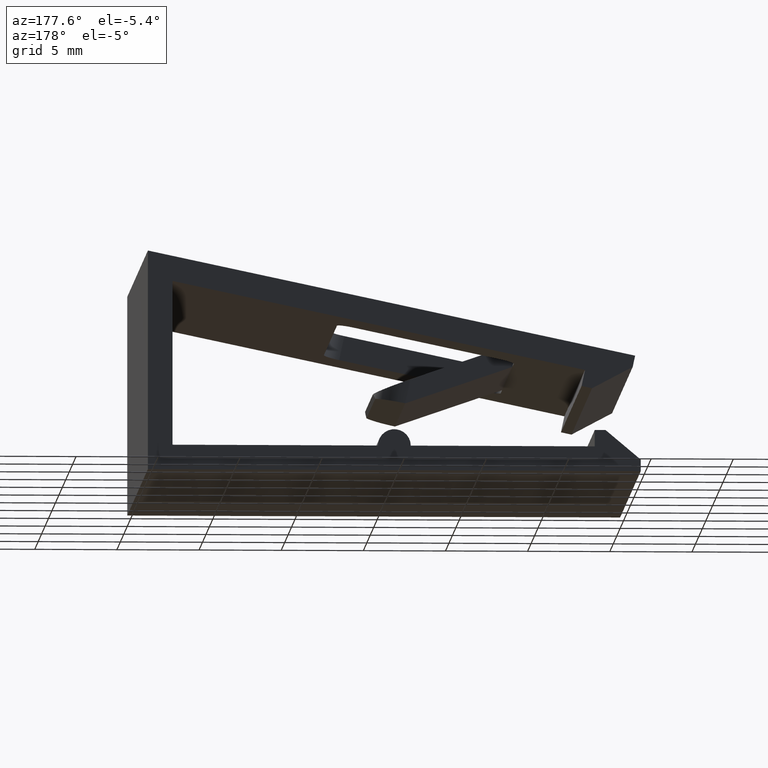
[diagram: clean part render]
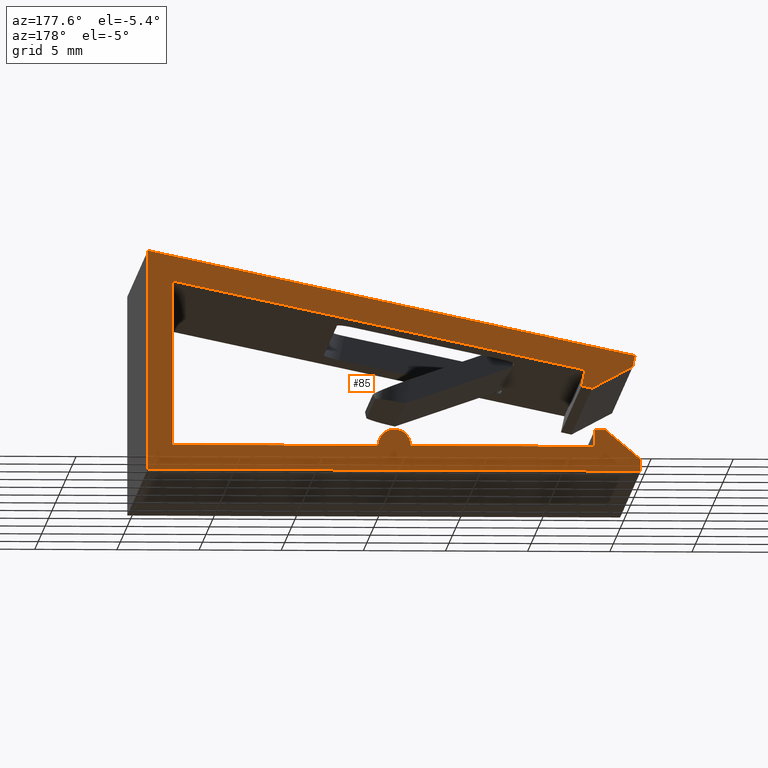
[diagram: same view with one face highlighted and labeled with its STEP entity id]
A machine part, auxiliary view. The second image highlights one B-rep face of the part: STEP entity #85.
In plain terms, the highlighted planar face has unit normal (-0, -1, -0).
Its self-contained STEP definition (entity closure, byte-faithful):
#85 = ADVANCED_FACE( '', ( #133 ), #134, .F. );
#133 = FACE_OUTER_BOUND( '', #205, .T. );
#134 = PLANE( '', #206 );
#205 = EDGE_LOOP( '', ( #345, #346, #347, #348, #349, #350, #351, #352, #353, #354, #355, #356, #357, #358, #359, #360 ) );
#206 = AXIS2_PLACEMENT_3D( '', #361, #362, #363 );
#345 = ORIENTED_EDGE( '', *, *, #552, .F. );
#346 = ORIENTED_EDGE( '', *, *, #594, .F. );
#347 = ORIENTED_EDGE( '', *, *, #595, .F. );
#348 = ORIENTED_EDGE( '', *, *, #596, .F. );
#349 = ORIENTED_EDGE( '', *, *, #597, .F. );
#350 = ORIENTED_EDGE( '', *, *, #598, .F. );
#351 = ORIENTED_EDGE( '', *, *, #599, .F. );
#352 = ORIENTED_EDGE( '', *, *, #600, .F. );
#353 = ORIENTED_EDGE( '', *, *, #601, .F. );
#354 = ORIENTED_EDGE( '', *, *, #564, .F. );
#355 = ORIENTED_EDGE( '', *, *, #602, .F. );
#356 = ORIENTED_EDGE( '', *, *, #603, .F. );
#357 = ORIENTED_EDGE( '', *, *, #604, .F. );
#358 = ORIENTED_EDGE( '', *, *, #605, .F. );
#359 = ORIENTED_EDGE( '', *, *, #582, .F. );
#360 = ORIENTED_EDGE( '', *, *, #606, .F. );
#361 = CARTESIAN_POINT( '', ( 1.56125112837913E-014, 15.0000000000000, 1.50000000000001 ) );
#362 = DIRECTION( '', ( -6.12303176911189E-017, -1.00000000000000, -1.83690953073357E-016 ) );
#363 = DIRECTION( '', ( 1.00000000000000, -6.12303176911189E-017, 0.000000000000000 ) );
#552 = EDGE_CURVE( '', #650, #652, #653, .T. );
#564 = EDGE_CURVE( '', #671, #673, #674, .T. );
#582 = EDGE_CURVE( '', #704, #706, #707, .T. );
#594 = EDGE_CURVE( '', #725, #650, #727, .T. );
#595 = EDGE_CURVE( '', #728, #725, #729, .T. );
#596 = EDGE_CURVE( '', #730, #728, #731, .T. );
#597 = EDGE_CURVE( '', #732, #730, #733, .T. );
#598 = EDGE_CURVE( '', #734, #732, #735, .T. );
#599 = EDGE_CURVE( '', #736, #734, #737, .T. );
#600 = EDGE_CURVE( '', #738, #736, #739, .T. );
#601 = EDGE_CURVE( '', #673, #738, #740, .T. );
#602 = EDGE_CURVE( '', #741, #671, #742, .T. );
#603 = EDGE_CURVE( '', #743, #741, #744, .T. );
#604 = EDGE_CURVE( '', #745, #743, #746, .T. );
#605 = EDGE_CURVE( '', #706, #745, #747, .T. );
#606 = EDGE_CURVE( '', #652, #704, #748, .T. );
#650 = VERTEX_POINT( '', #808 );
#652 = VERTEX_POINT( '', #811 );
#653 = LINE( '', #812, #813 );
#671 = VERTEX_POINT( '', #837 );
#673 = VERTEX_POINT( '', #840 );
#674 = LINE( '', #841, #842 );
#704 = VERTEX_POINT( '', #883 );
#706 = VERTEX_POINT( '', #886 );
#707 = LINE( '', #887, #888 );
#725 = VERTEX_POINT( '', #913 );
#727 = LINE( '', #916, #917 );
#728 = VERTEX_POINT( '', #918 );
#729 = LINE( '', #919, #920 );
#730 = VERTEX_POINT( '', #921 );
#731 = LINE( '', #922, #923 );
#732 = VERTEX_POINT( '', #924 );
#733 = LINE( '', #925, #926 );
#734 = VERTEX_POINT( '', #927 );
#735 = LINE( '', #928, #929 );
#736 = VERTEX_POINT( '', #930 );
#737 = CIRCLE( '', #931, 1.00000000000000 );
#738 = VERTEX_POINT( '', #932 );
#739 = LINE( '', #933, #934 );
#740 = LINE( '', #935, #936 );
#741 = VERTEX_POINT( '', #937 );
#742 = LINE( '', #938, #939 );
#743 = VERTEX_POINT( '', #940 );
#744 = LINE( '', #941, #942 );
#745 = VERTEX_POINT( '', #943 );
#746 = LINE( '', #944, #945 );
#747 = LINE( '', #946, #947 );
#748 = LINE( '', #948, #949 );
#808 = CARTESIAN_POINT( '', ( -15.0000000000000, 15.0000000000000, 7.35387228542605E-015 ) );
#811 = CARTESIAN_POINT( '', ( 15.0000000000000, 15.0000000000000, 5.51072859220070E-015 ) );
#812 = CARTESIAN_POINT( '', ( -15.0000000000000, 15.0000000000000, 7.34763812293426E-015 ) );
#813 = VECTOR( '', #1028, 1000.00000000000 );
#837 = CARTESIAN_POINT( '', ( -11.6056147399596, 15.0000000000000, 6.16480200975693 ) );
#840 = CARTESIAN_POINT( '', ( 13.5000000000000, 15.0000000000000, 11.5011651574950 ) );
#841 = CARTESIAN_POINT( '', ( -11.6056147399596, 15.0000000000000, 6.16480200975693 ) );
#842 = VECTOR( '', #1048, 1000.00000000000 );
#883 = CARTESIAN_POINT( '', ( 15.0000000000000, 15.0000000000000, 13.3535108922976 ) );
#886 = CARTESIAN_POINT( '', ( -14.6562955582409, 15.0000000000000, 7.04987067656792 ) );
#887 = CARTESIAN_POINT( '', ( 15.0000000000000, 15.0000000000000, 13.3535108922976 ) );
#888 = VECTOR( '', #1076, 1000.00000000000 );
#913 = CARTESIAN_POINT( '', ( -15.0000000000000, 15.0000000000000, 0.700000000000012 ) );
#916 = CARTESIAN_POINT( '', ( -15.0000000000000, 15.0000000000000, 0.700000000000012 ) );
#917 = VECTOR( '', #1094, 1000.00000000000 );
#918 = CARTESIAN_POINT( '', ( -12.8548435333304, 15.0000000000000, 2.50000000000001 ) );
#919 = CARTESIAN_POINT( '', ( -12.8548435333304, 15.0000000000000, 2.50000000000001 ) );
#920 = VECTOR( '', #1095, 1000.00000000000 );
#921 = CARTESIAN_POINT( '', ( -12.2000000000000, 15.0000000000000, 2.50000000000001 ) );
#922 = CARTESIAN_POINT( '', ( -12.2000000000000, 15.0000000000000, 2.50000000000001 ) );
#923 = VECTOR( '', #1096, 1000.00000000000 );
#924 = CARTESIAN_POINT( '', ( -12.2000000000000, 15.0000000000000, 1.50000000000001 ) );
#925 = CARTESIAN_POINT( '', ( -12.2000000000000, 15.0000000000000, 1.50000000000001 ) );
#926 = VECTOR( '', #1097, 1000.00000000000 );
#927 = CARTESIAN_POINT( '', ( -0.999999999999984, 15.0000000000000, 1.50000000000001 ) );
#928 = CARTESIAN_POINT( '', ( -0.999999999999984, 15.0000000000000, 1.50000000000001 ) );
#929 = VECTOR( '', #1098, 1000.00000000000 );
#930 = CARTESIAN_POINT( '', ( 1.00000000000002, 15.0000000000000, 1.50000000000001 ) );
#931 = AXIS2_PLACEMENT_3D( '', #1099, #1100, #1101 );
#932 = CARTESIAN_POINT( '', ( 13.5000000000000, 15.0000000000000, 1.50000000000002 ) );
#933 = CARTESIAN_POINT( '', ( 13.5000000000000, 15.0000000000000, 1.50000000000001 ) );
#934 = VECTOR( '', #1102, 1000.00000000000 );
#935 = CARTESIAN_POINT( '', ( 13.5000000000000, 15.0000000000000, 11.5011651574950 ) );
#936 = VECTOR( '', #1103, 1000.00000000000 );
#937 = CARTESIAN_POINT( '', ( -11.3977030491419, 15.0000000000000, 5.18665440902314 ) );
#938 = CARTESIAN_POINT( '', ( -11.3977030491419, 15.0000000000000, 5.18665440902314 ) );
#939 = VECTOR( '', #1104, 1000.00000000000 );
#940 = CARTESIAN_POINT( '', ( -12.0382366801250, 15.0000000000000, 5.05050478278734 ) );
#941 = CARTESIAN_POINT( '', ( -12.0382366801250, 15.0000000000000, 5.05050478278734 ) );
#942 = VECTOR( '', #1105, 1000.00000000000 );
#943 = CARTESIAN_POINT( '', ( -14.5107573746685, 15.0000000000000, 6.36516735605427 ) );
#944 = CARTESIAN_POINT( '', ( -14.5107573746685, 15.0000000000000, 6.36516735605428 ) );
#945 = VECTOR( '', #1106, 1000.00000000000 );
#946 = CARTESIAN_POINT( '', ( -14.6562955582409, 15.0000000000000, 7.04987067656792 ) );
#947 = VECTOR( '', #1107, 1000.00000000000 );
#948 = CARTESIAN_POINT( '', ( 15.0000000000000, 15.0000000000000, 5.51072859220070E-015 ) );
#949 = VECTOR( '', #1108, 1000.00000000000 );
#1028 = DIRECTION( '', ( 1.00000000000000, -6.12303176911189E-017, -6.12303176911189E-017 ) );
#1048 = DIRECTION( '', ( 0.978147600733806, -9.80837849831438E-017, 0.207911690817759 ) );
#1076 = DIRECTION( '', ( -0.978147600733806, 9.80837849831438E-017, -0.207911690817759 ) );
#1094 = DIRECTION( '', ( 1.12474554136660E-032, 1.83690953073357E-016, -1.00000000000000 ) );
#1095 = DIRECTION( '', ( -0.766044443118978, 1.64979413264756E-016, -0.642787609686539 ) );
#1096 = DIRECTION( '', ( -1.00000000000000, 6.12303176911189E-017, 0.000000000000000 ) );
#1097 = DIRECTION( '', ( -1.12474554136660E-032, -1.83690953073357E-016, 1.00000000000000 ) );
#1098 = DIRECTION( '', ( -1.00000000000000, 6.12303176911189E-017, 6.37765983815003E-017 ) );
#1099 = CARTESIAN_POINT( '', ( 1.56125112837913E-014, 15.0000000000000, 1.50000000000001 ) );
#1100 = DIRECTION( '', ( -6.12303176911189E-017, -1.00000000000000, -1.83690953073357E-016 ) );
#1101 = DIRECTION( '', ( -1.12474554136660E-032, -1.83690953073357E-016, 1.00000000000000 ) );
#1102 = DIRECTION( '', ( -1.00000000000000, 6.12303176911189E-017, 6.37765983815003E-017 ) );
#1103 = DIRECTION( '', ( 1.12474554136660E-032, 1.83690953073357E-016, -1.00000000000000 ) );
#1104 = DIRECTION( '', ( -0.207911690817755, -1.66946366144741E-016, 0.978147600733807 ) );
#1105 = DIRECTION( '', ( 0.978147600733805, -9.80837849831440E-017, 0.207911690817760 ) );
#1106 = DIRECTION( '', ( 0.882947592858927, 3.21745171936175E-017, -0.469471562785890 ) );
#1107 = DIRECTION( '', ( 0.207911690817752, 1.66946366144741E-016, -0.978147600733807 ) );
#1108 = DIRECTION( '', ( -1.12474554136660E-032, -1.83690953073357E-016, 1.00000000000000 ) );